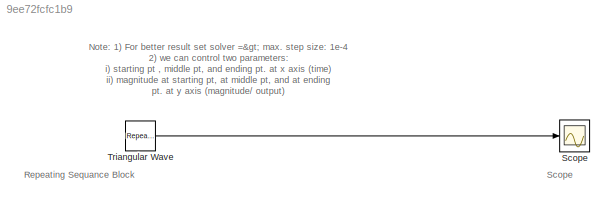
MODEL slx_9ee72fcfc1b9
KIND model
CONFIG AbsTol = auto
CONFIG EnableMultiTasking = off
CONFIG FixedStep = auto
CONFIG MaxStep = 1e-4
CONFIG MinStep = auto
CONFIG RelTol = 1e-3
CONFIG SampleTimeConstraint = Unconstrained
CONFIG SolverName = VariableStepAuto
CONFIG StartTime = 0.0
CONFIG StopTime = 10
BLOCK [Scope] Scope
  Floating = off
  NumInputPorts = 1
  ScopeSpecificationString = Simulink.scopes.TimeScopeBlockCfg('CurrentConfiguration', extmgr.ConfigurationSet(extmgr.Configuration('Core','General UI',true,'DisplayFullSourceName',true),extmgr.Configuration('Core','Source UI',true),extmgr.Configuration('Sources','WiredSimulink',true),extmgr.Configuration('Visuals','Time Domain',true,'SerializedDisplays',{struct('MinYLimReal','-1.00000','MaxYLimReal','20','YLabelReal','Magnit...<+1621ch>
BLOCK [Reference] Triangular Wave  REF=simulink/Sources/Repeating
Sequence
  SourceBlock = simulink/Sources/Repeating\nSequence
  SourceType = Repeating table
ANNOTATION (root): Note: 1) For better result set solver => max. step size: 1e-4 2) we can control two parameters: i) starting pt , middle pt, and ending pt. at x axis (time) ii) magnitude at starting pt, at middle pt, and at ending pt. at y axis (magnitude/ output)
ANNOTATION (root): Repeating Sequance Block
ANNOTATION (root): Scope
LINE Triangular Wave:1 -> Scope:1
